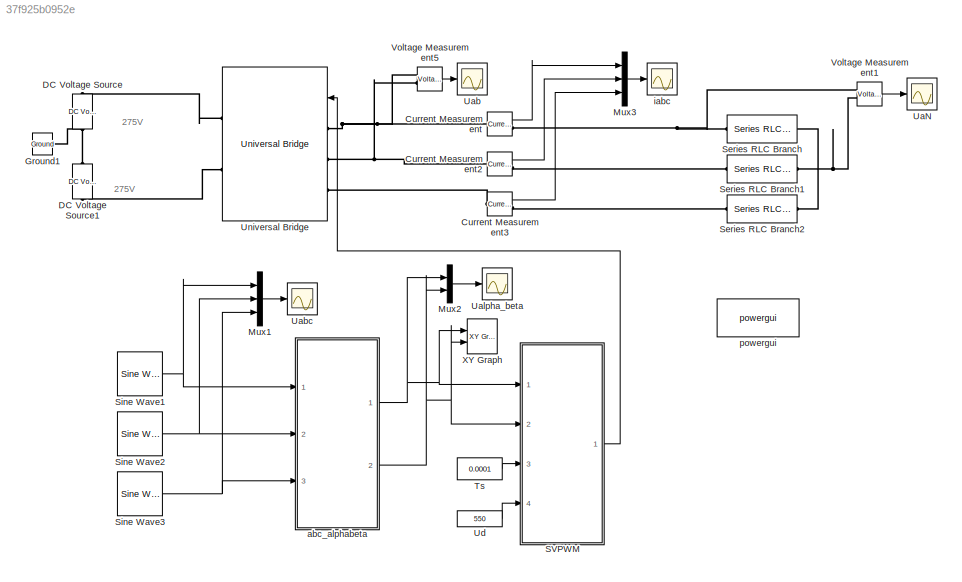
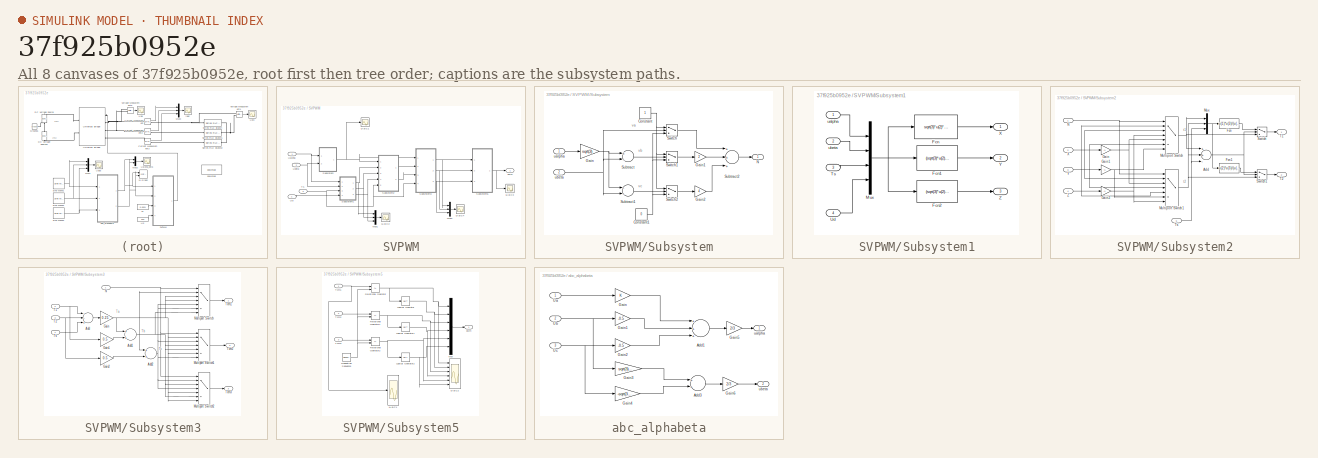
[diagram: thumbnail index - all 8 canvases of the model, root first then tree order]
MODEL slx_37f925b0952e
KIND model
CONFIG AbsTol = auto
CONFIG FixedStep = 2e-6
CONFIG MaxStep = 0.00001
CONFIG MinStep = auto
CONFIG RelTol = 1e-3
CONFIG SampleTimeConstraint = Unconstrained
CONFIG Solver = ode3
CONFIG SolverMode = Auto
CONFIG SolverName = ode3
CONFIG StartTime = 0.0
CONFIG StopTime = 0.06
BLOCK [Reference] Current Measurement  REF=powerlib/Measurements/Current Measurement
  OutputType = Complex
  PSBequivalent = 0
  PhasorSimulation = off
  Ports = [0, 1, 0, 0, 0, 1, 1]
  SourceBlock = powerlib/Measurements/Current Measurement
  SourceType = Current Measurement
BLOCK [Reference] Current Measurement2  REF=powerlib/Measurements/Current Measurement
  OutputType = Complex
  PSBequivalent = 0
  PhasorSimulation = off
  Ports = [0, 1, 0, 0, 0, 1, 1]
  SourceBlock = powerlib/Measurements/Current Measurement
  SourceType = Current Measurement
BLOCK [Reference] Current Measurement3  REF=powerlib/Measurements/Current Measurement
  OutputType = Complex
  PSBequivalent = 0
  PhasorSimulation = off
  Ports = [0, 1, 0, 0, 0, 1, 1]
  SourceBlock = powerlib/Measurements/Current Measurement
  SourceType = Current Measurement
BLOCK [Reference] DC Voltage Source  REF=powerlib/Electrical
Sources/DC Voltage Source
  Amplitude = 275
  Measurements = None
  Ports = [0, 0, 0, 0, 0, 1, 1]
  SourceBlock = powerlib/Electrical\nSources/DC Voltage Source
  SourceType = DC Voltage Source
BLOCK [Reference] DC Voltage Source1  REF=powerlib/Electrical
Sources/DC Voltage Source
  Amplitude = 275
  Measurements = None
  Ports = [0, 0, 0, 0, 0, 1, 1]
  SourceBlock = powerlib/Electrical\nSources/DC Voltage Source
  SourceType = DC Voltage Source
BLOCK [Reference] Ground1  REF=powerlib/Elements/Ground
  LConnTagsString = a
  Ports = [0, 0, 0, 0, 0, 1]
  SourceBlock = powerlib/Elements/Ground
  SourceType = Ground
BLOCK [Mux] Mux1
  DisplayOption = bar
  Inputs = 3
  Ports = [3, 1]
BLOCK [Mux] Mux2
  DisplayOption = bar
  Inputs = 2
  Ports = [2, 1]
BLOCK [Mux] Mux3
  DisplayOption = bar
  Inputs = 3
  Ports = [3, 1]
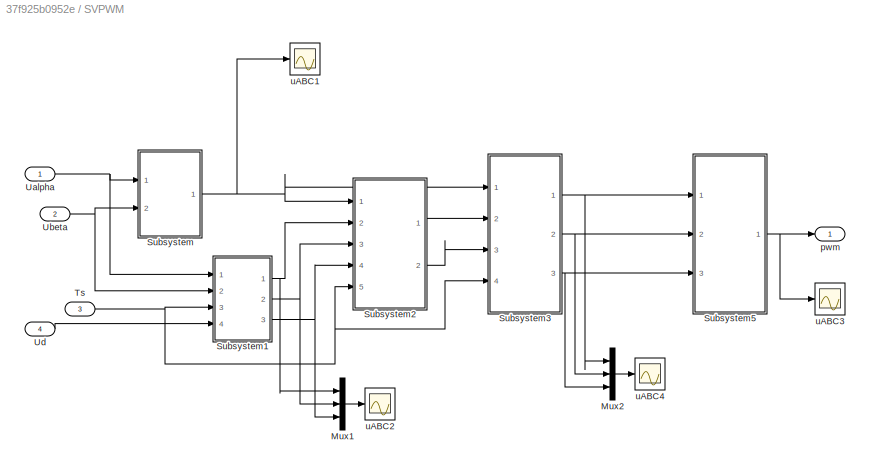
BLOCK [SubSystem] SVPWM
  Ports = [4, 1]
  RequestExecContextInheritance = off
BLOCK [Mux] SVPWM/Mux1
  DisplayOption = bar
  Inputs = 3
  Ports = [3, 1]
BLOCK [Mux] SVPWM/Mux2
  DisplayOption = bar
  Inputs = 3
  Ports = [3, 1]
BLOCK [SubSystem] SVPWM/Subsystem
  Ports = [2, 1]
  RequestExecContextInheritance = off
BLOCK [Constant] SVPWM/Subsystem/Constant
BLOCK [Constant] SVPWM/Subsystem/Constant1
  Value = 0
BLOCK [Gain] SVPWM/Subsystem/Gain
  Gain = sqrt(3)
  OutDataTypeStr = Inherit: Inherit via internal rule
  ParamDataTypeStr = Inherit: Inherit via internal rule
  SaturateOnIntegerOverflow = off
BLOCK [Gain] SVPWM/Subsystem/Gain1
  Gain = 2
  OutDataTypeStr = Inherit: Inherit via internal rule
  ParamDataTypeStr = Inherit: Inherit via internal rule
  SaturateOnIntegerOverflow = off
BLOCK [Gain] SVPWM/Subsystem/Gain2
  Gain = 4
  OutDataTypeStr = Inherit: Inherit via internal rule
  ParamDataTypeStr = Inherit: Inherit via internal rule
  SaturateOnIntegerOverflow = off
BLOCK [Outport] SVPWM/Subsystem/N
  IconDisplay = Port number
BLOCK [Sum] SVPWM/Subsystem/Subtract
  InputSameDT = off
  Inputs = +-
  OutDataTypeStr = Inherit: Inherit via internal rule
  Ports = [2, 1]
  SaturateOnIntegerOverflow = off
BLOCK [Sum] SVPWM/Subsystem/Subtract1
  InputSameDT = off
  Inputs = --
  OutDataTypeStr = Inherit: Inherit via internal rule
  Ports = [2, 1]
  SaturateOnIntegerOverflow = off
BLOCK [Sum] SVPWM/Subsystem/Subtract2
  InputSameDT = off
  Inputs = +++
  OutDataTypeStr = Inherit: Inherit via internal rule
  Ports = [3, 1]
  SaturateOnIntegerOverflow = off
BLOCK [Switch] SVPWM/Subsystem/Switch
  InputSameDT = off
  SaturateOnIntegerOverflow = off
BLOCK [Switch] SVPWM/Subsystem/Switch1
  InputSameDT = off
  SaturateOnIntegerOverflow = off
BLOCK [Switch] SVPWM/Subsystem/Switch2
  InputSameDT = off
  SaturateOnIntegerOverflow = off
BLOCK [Inport] SVPWM/Subsystem/ualpha
  IconDisplay = Port number
BLOCK [Inport] SVPWM/Subsystem/ubeta
  IconDisplay = Port number
  Port = 2
BLOCK [SubSystem] SVPWM/Subsystem1
  Ports = [4, 3]
  RequestExecContextInheritance = off
BLOCK [Fcn] SVPWM/Subsystem1/Fcn
  Expr = sqrt(3)*u(2)*u(3)/u(4)
BLOCK [Fcn] SVPWM/Subsystem1/Fcn1
  Expr = (sqrt(3)*u(2)/2+3*u(1)/2)*u(3)/u(4)
BLOCK [Fcn] SVPWM/Subsystem1/Fcn2
  Expr = (sqrt(3)*u(2)/2-3*u(1)/2)*u(3)/u(4)
BLOCK [Mux] SVPWM/Subsystem1/Mux
  DisplayOption = bar
  Ports = [4, 1]
BLOCK [Inport] SVPWM/Subsystem1/Ts
  IconDisplay = Port number
  Port = 3
BLOCK [Inport] SVPWM/Subsystem1/Ud
  IconDisplay = Port number
  Port = 4
BLOCK [Outport] SVPWM/Subsystem1/X
  IconDisplay = Port number
BLOCK [Outport] SVPWM/Subsystem1/Y
  IconDisplay = Port number
  Port = 2
BLOCK [Outport] SVPWM/Subsystem1/Z
  IconDisplay = Port number
  Port = 3
BLOCK [Inport] SVPWM/Subsystem1/ualpha
  IconDisplay = Port number
BLOCK [Inport] SVPWM/Subsystem1/ubeta
  IconDisplay = Port number
  Port = 2
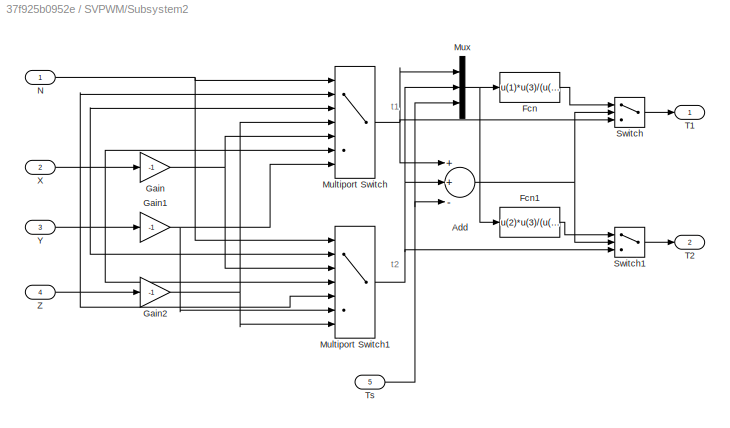
BLOCK [SubSystem] SVPWM/Subsystem2
  Ports = [5, 2]
  RequestExecContextInheritance = off
BLOCK [Sum] SVPWM/Subsystem2/Add
  InputSameDT = off
  Inputs = ++-
  OutDataTypeStr = Inherit: Inherit via internal rule
  Ports = [3, 1]
  SaturateOnIntegerOverflow = off
BLOCK [Fcn] SVPWM/Subsystem2/Fcn
  Expr = u(1)*u(3)/(u(1)+u(2))
BLOCK [Fcn] SVPWM/Subsystem2/Fcn1
  Expr = u(2)*u(3)/(u(1)+u(2))
BLOCK [Gain] SVPWM/Subsystem2/Gain
  Gain = -1
  OutDataTypeStr = Inherit: Inherit via internal rule
  ParamDataTypeStr = Inherit: Inherit via internal rule
  SaturateOnIntegerOverflow = off
BLOCK [Gain] SVPWM/Subsystem2/Gain1
  Gain = -1
  OutDataTypeStr = Inherit: Inherit via internal rule
  ParamDataTypeStr = Inherit: Inherit via internal rule
  SaturateOnIntegerOverflow = off
BLOCK [Gain] SVPWM/Subsystem2/Gain2
  Gain = -1
  OutDataTypeStr = Inherit: Inherit via internal rule
  ParamDataTypeStr = Inherit: Inherit via internal rule
  SaturateOnIntegerOverflow = off
BLOCK [MultiPortSwitch] SVPWM/Subsystem2/Multiport Switch
  InputSameDT = off
  Inputs = 6
  Ports = [7, 1]
  SaturateOnIntegerOverflow = off
BLOCK [MultiPortSwitch] SVPWM/Subsystem2/Multiport Switch1
  InputSameDT = off
  Inputs = 6
  Ports = [7, 1]
  SaturateOnIntegerOverflow = off
BLOCK [Mux] SVPWM/Subsystem2/Mux
  DisplayOption = bar
  Inputs = 3
  Ports = [3, 1]
BLOCK [Inport] SVPWM/Subsystem2/N
  IconDisplay = Port number
BLOCK [Switch] SVPWM/Subsystem2/Switch
  InputSameDT = off
  SaturateOnIntegerOverflow = off
BLOCK [Switch] SVPWM/Subsystem2/Switch1
  InputSameDT = off
  SaturateOnIntegerOverflow = off
BLOCK [Outport] SVPWM/Subsystem2/T1
  IconDisplay = Port number
BLOCK [Outport] SVPWM/Subsystem2/T2
  IconDisplay = Port number
  Port = 2
BLOCK [Inport] SVPWM/Subsystem2/Ts
  IconDisplay = Port number
  Port = 5
BLOCK [Inport] SVPWM/Subsystem2/X
  IconDisplay = Port number
  Port = 2
BLOCK [Inport] SVPWM/Subsystem2/Y
  IconDisplay = Port number
  Port = 3
BLOCK [Inport] SVPWM/Subsystem2/Z
  IconDisplay = Port number
  Port = 4
BLOCK [SubSystem] SVPWM/Subsystem3
  Ports = [4, 3]
  RequestExecContextInheritance = off
BLOCK [Sum] SVPWM/Subsystem3/Add
  InputSameDT = off
  Inputs = --+
  OutDataTypeStr = Inherit: Inherit via internal rule
  Ports = [3, 1]
  SaturateOnIntegerOverflow = off
BLOCK [Sum] SVPWM/Subsystem3/Add1
  InputSameDT = off
  OutDataTypeStr = Inherit: Inherit via internal rule
  Ports = [2, 1]
  SaturateOnIntegerOverflow = off
BLOCK [Sum] SVPWM/Subsystem3/Add2
  InputSameDT = off
  OutDataTypeStr = Inherit: Inherit via internal rule
  Ports = [2, 1]
  SaturateOnIntegerOverflow = off
BLOCK [Gain] SVPWM/Subsystem3/Gain
  Gain = 0.25
  OutDataTypeStr = Inherit: Inherit via internal rule
  ParamDataTypeStr = Inherit: Inherit via internal rule
  SaturateOnIntegerOverflow = off
BLOCK [Gain] SVPWM/Subsystem3/Gain1
  Gain = 0.5
  OutDataTypeStr = Inherit: Inherit via internal rule
  ParamDataTypeStr = Inherit: Inherit via internal rule
  SaturateOnIntegerOverflow = off
BLOCK [Gain] SVPWM/Subsystem3/Gain2
  Gain = 0.5
  OutDataTypeStr = Inherit: Inherit via internal rule
  ParamDataTypeStr = Inherit: Inherit via internal rule
  SaturateOnIntegerOverflow = off
BLOCK [MultiPortSwitch] SVPWM/Subsystem3/Multiport Switch
  InputSameDT = off
  Inputs = 6
  Ports = [7, 1]
  SaturateOnIntegerOverflow = off
BLOCK [MultiPortSwitch] SVPWM/Subsystem3/Multiport Switch1
  InputSameDT = off
  Inputs = 6
  Ports = [7, 1]
  SaturateOnIntegerOverflow = off
BLOCK [MultiPortSwitch] SVPWM/Subsystem3/Multiport Switch2
  InputSameDT = off
  Inputs = 6
  Ports = [7, 1]
  SaturateOnIntegerOverflow = off
BLOCK [Inport] SVPWM/Subsystem3/N
  IconDisplay = Port number
BLOCK [Inport] SVPWM/Subsystem3/T1
  IconDisplay = Port number
  Port = 2
BLOCK [Inport] SVPWM/Subsystem3/T2
  IconDisplay = Port number
  Port = 3
BLOCK [Outport] SVPWM/Subsystem3/Tcm1
  IconDisplay = Port number
BLOCK [Outport] SVPWM/Subsystem3/Tcm2
  IconDisplay = Port number
  Port = 2
BLOCK [Outport] SVPWM/Subsystem3/Tcm3
  IconDisplay = Port number
  Port = 3
BLOCK [Inport] SVPWM/Subsystem3/Ts
  IconDisplay = Port number
  Port = 4
BLOCK [SubSystem] SVPWM/Subsystem5
  Ports = [3, 1]
  RequestExecContextInheritance = off
BLOCK [Logic] SVPWM/Subsystem5/Logical Operator
  AllPortsSameDT = off
  Operator = NOT
  OutDataTypeStr = boolean
  Ports = [1, 1]
BLOCK [Logic] SVPWM/Subsystem5/Logical Operator1
  AllPortsSameDT = off
  Operator = NOT
  OutDataTypeStr = boolean
  Ports = [1, 1]
BLOCK [Logic] SVPWM/Subsystem5/Logical Operator2
  AllPortsSameDT = off
  Operator = NOT
  OutDataTypeStr = boolean
  Ports = [1, 1]
BLOCK [Mux] SVPWM/Subsystem5/Mux
  DisplayOption = bar
  Inputs = 6
  Ports = [6, 1]
BLOCK [RelationalOperator] SVPWM/Subsystem5/Relational Operator
  InputSameDT = off
  Operator = <=
  OutDataTypeStr = boolean
  Ports = [2, 1]
BLOCK [RelationalOperator] SVPWM/Subsystem5/Relational Operator1
  InputSameDT = off
  Operator = <=
  OutDataTypeStr = boolean
  Ports = [2, 1]
BLOCK [RelationalOperator] SVPWM/Subsystem5/Relational Operator2
  InputSameDT = off
  Operator = <=
  OutDataTypeStr = boolean
  Ports = [2, 1]
BLOCK [Reference] SVPWM/Subsystem5/Repeating Sequence  REF=simulink/Sources/Repeating
Sequence
  Ports = [0, 1]
  SourceBlock = simulink/Sources/Repeating\nSequence
  SourceType = Repeating table
  rep_seq_t = [0 5e-5 1e-4]
  rep_seq_y = [0 5e-5 0]
BLOCK [Inport] SVPWM/Subsystem5/Tcm1
  IconDisplay = Port number
BLOCK [Inport] SVPWM/Subsystem5/Tcm2
  IconDisplay = Port number
  Port = 2
BLOCK [Inport] SVPWM/Subsystem5/Tcm3
  IconDisplay = Port number
  Port = 3
BLOCK [Outport] SVPWM/Subsystem5/pwm
  IconDisplay = Port number
BLOCK [Scope] SVPWM/Subsystem5/uABC1
  DataFormat = StructureWithTime
  Floating = off
  LimitDataPoints = off
  NumInputPorts = 1
  Ports = [1]
  SampleTime = 0
  SaveName = ScopeData33
  YMax = 4e-05
  YMin = 1e-05
  ZoomMode = xonly
BLOCK [Scope] SVPWM/Subsystem5/uABC2
  DataFormat = StructureWithTime
  Floating = off
  LimitDataPoints = off
  NumInputPorts = 6
  Ports = [6]
  SampleTime = 0
  SaveName = ScopeData9
  YMax = 750~5~5~5~5~5
  YMin = -750~-5~-5~-5~-5~-5
  ZoomMode = xonly
BLOCK [Inport] SVPWM/Ts
  IconDisplay = Port number
  Port = 3
BLOCK [Inport] SVPWM/Ualpha
  IconDisplay = Port number
BLOCK [Inport] SVPWM/Ubeta
  IconDisplay = Port number
  Port = 2
BLOCK [Inport] SVPWM/Ud
  IconDisplay = Port number
  Port = 4
BLOCK [Outport] SVPWM/pwm
  IconDisplay = Port number
BLOCK [Scope] SVPWM/uABC1
  DataFormat = StructureWithTime
  Floating = off
  LimitDataPoints = off
  NumInputPorts = 1
  Ports = [1]
  SampleTime = 0
  SaveName = ScopeData2
  YMax = 750
  YMin = -750
  ZoomMode = xonly
BLOCK [Scope] SVPWM/uABC2
  DataFormat = StructureWithTime
  Floating = off
  LimitDataPoints = off
  NumInputPorts = 1
  Ports = [1]
  SampleTime = 0
  SaveName = ScopeData3
  YMax = 750
  YMin = -750
  ZoomMode = xonly
BLOCK [Scope] SVPWM/uABC3
  DataFormat = StructureWithTime
  Floating = off
  LimitDataPoints = off
  NumInputPorts = 1
  Ports = [1]
  SampleTime = 0
  SaveName = ScopeData10
  YMax = 1
  YMin = 0
  ZoomMode = xonly
BLOCK [Scope] SVPWM/uABC4
  DataFormat = StructureWithTime
  Floating = off
  LimitDataPoints = off
  NumInputPorts = 1
  Ports = [1]
  SampleTime = 0
  YMax = 5.25e-005
  YMin = -2.5e-006
  ZoomMode = xonly
BLOCK [Reference] Series RLC Branch  REF=powerlib/Elements/Series RLC Branch
  BranchType = RL
  Capacitance = 1e-6
  Inductance = 1e-3
  InitialCurrent = 0
  InitialVoltage = 0
  LConnTagsString = __new0
  Measurements = None
  Ports = [0, 0, 0, 0, 0, 1, 1]
  RConnTagsString = __new0
  Resistance = 1
  SetiL0 = off
  Setx0 = off
  SourceBlock = powerlib/Elements/Series RLC Branch
  SourceType = Series RLC Branch
BLOCK [Reference] Series RLC Branch1  REF=powerlib/Elements/Series RLC Branch
  BranchType = RL
  Capacitance = 1e-6
  Inductance = 1e-3
  InitialCurrent = 0
  InitialVoltage = 0
  LConnTagsString = __new0
  Measurements = None
  Ports = [0, 0, 0, 0, 0, 1, 1]
  RConnTagsString = __new0
  Resistance = 1
  SetiL0 = off
  Setx0 = off
  SourceBlock = powerlib/Elements/Series RLC Branch
  SourceType = Series RLC Branch
BLOCK [Reference] Series RLC Branch2  REF=powerlib/Elements/Series RLC Branch
  BranchType = RL
  Capacitance = 1e-6
  Inductance = 1e-3
  InitialCurrent = 0
  InitialVoltage = 0
  LConnTagsString = __new0
  Measurements = None
  Ports = [0, 0, 0, 0, 0, 1, 1]
  RConnTagsString = __new0
  Resistance = 1
  SetiL0 = off
  Setx0 = off
  SourceBlock = powerlib/Elements/Series RLC Branch
  SourceType = Series RLC Branch
BLOCK [Reference] Sine Wave1  REF=dspsrcs4/Sine Wave
  Amplitude = 311
  CompMethod = Trigonometric fcn
  Frequency = 50
  LastOutDataTypeStr = double
  OutComplex = Real
  OutDataTypeStr = double
  Phase = 0
  Ports = [0, 1]
  ResetState = Restart at time zero
  SampleMode = Discrete
  SampleTime = 2e-6
  SamplesPerFrame = 1
  SourceBlock = dspsrcs4/Sine Wave
  SourceType = Sine Wave
  TableSize = Speed
  additionalParams = off
  allowOverrides = on
  dataType = double
  fracBitsMode = Best precision
  numFracBits = 15
  udDataType = sfix(16)
  wordLen = 16
BLOCK [Reference] Sine Wave2  REF=dspsrcs4/Sine Wave
  Amplitude = 311
  CompMethod = Trigonometric fcn
  Frequency = 50
  LastOutDataTypeStr = double
  OutComplex = Real
  OutDataTypeStr = double
  Phase = -2*pi/3
  Ports = [0, 1]
  ResetState = Restart at time zero
  SampleMode = Discrete
  SampleTime = 2e-6
  SamplesPerFrame = 1
  SourceBlock = dspsrcs4/Sine Wave
  SourceType = Sine Wave
  TableSize = Speed
  additionalParams = off
  allowOverrides = on
  dataType = double
  fracBitsMode = Best precision
  numFracBits = 15
  udDataType = sfix(16)
  wordLen = 16
BLOCK [Reference] Sine Wave3  REF=dspsrcs4/Sine Wave
  Amplitude = 311
  CompMethod = Trigonometric fcn
  Frequency = 50
  LastOutDataTypeStr = double
  OutComplex = Real
  OutDataTypeStr = double
  Phase = -4*pi/3
  Ports = [0, 1]
  ResetState = Restart at time zero
  SampleMode = Discrete
  SampleTime = 2e-6
  SamplesPerFrame = 1
  SourceBlock = dspsrcs4/Sine Wave
  SourceType = Sine Wave
  TableSize = Speed
  additionalParams = off
  allowOverrides = on
  dataType = double
  fracBitsMode = Best precision
  numFracBits = 15
  udDataType = sfix(16)
  wordLen = 16
BLOCK [Constant] Ts
  Value = 0.0001
BLOCK [Scope] UaN
  DataFormat = StructureWithTime
  Floating = off
  LimitDataPoints = off
  NumInputPorts = 1
  Ports = [1]
  SampleTime = 0
  SaveName = ScopeData6
  ZoomMode = xonly
BLOCK [Scope] Uab
  DataFormat = StructureWithTime
  Floating = off
  LimitDataPoints = off
  NumInputPorts = 1
  Ports = [1]
  SampleTime = 0
  SaveName = ScopeData1
  YMax = 600
  YMin = -600
  ZoomMode = xonly
BLOCK [Scope] Uabc
  DataFormat = StructureWithTime
  Floating = off
  LimitDataPoints = off
  NumInputPorts = 1
  Ports = [1]
  SampleTime = 0
  SaveName = ScopeData7
  YMax = 35
  YMin = -35
  ZoomMode = xonly
BLOCK [Scope] Ualpha_beta
  DataFormat = StructureWithTime
  Floating = off
  LimitDataPoints = off
  NumInputPorts = 1
  Ports = [1]
  SampleTime = 0
  SaveName = ScopeData4
  YMax = 1.1e+006
  YMin = -1.1e+006
  ZoomMode = yonly
BLOCK [Constant] Ud
  Value = 550
BLOCK [Reference] Universal Bridge  REF=powerlib/Power
Electronics/Universal Bridge
  Arms = 3
  Device = MOSFET / Diodes
  ForwardVoltage = 0
  ForwardVoltages = [  0  0  ]
  GTOparameters = [ 10e-6 , 20e-6 ]
  IGBTparameters = [ 1e-6 , 2e-6 ]
  Lon = 0
  Measurements = None
  Measurements_2 = None
  Ports = [1, 0, 0, 0, 0, 3, 2]
  Ron = 1e-3
  SnubberCapacitance = inf
  SnubberResistance = 1e5
  SourceBlock = powerlib/Power\nElectronics/Universal Bridge
  SourceType = Universal Bridge
  converterType = Rectifier
BLOCK [Reference] Voltage Measurement1  REF=powerlib/Measurements/Voltage Measurement
  OutputType = Complex
  PSBequivalent = 0
  PhasorSimulation = off
  Ports = [0, 1, 0, 0, 0, 2]
  SourceBlock = powerlib/Measurements/Voltage Measurement
  SourceType = Voltage Measurement
BLOCK [Reference] Voltage Measurement5  REF=powerlib/Measurements/Voltage Measurement
  OutputType = Complex
  PSBequivalent = 0
  PhasorSimulation = off
  Ports = [0, 1, 0, 0, 0, 2]
  SourceBlock = powerlib/Measurements/Voltage Measurement
  SourceType = Voltage Measurement
BLOCK [Reference] XY Graph  REF=simulink/Sinks/XY Graph
  Ports = [2]
  SourceBlock = simulink/Sinks/XY Graph
  SourceType = XY scope.
  st = -1
  xmax = 550
  xmin = -550
  ymax = 550
  ymin = -550
BLOCK [SubSystem] abc_alphabeta
  Ports = [3, 2]
  RequestExecContextInheritance = off
BLOCK [Sum] abc_alphabeta/Add1
  InputSameDT = off
  Inputs = +++
  OutDataTypeStr = Inherit: Inherit via internal rule
  Ports = [3, 1]
  SaturateOnIntegerOverflow = off
BLOCK [Sum] abc_alphabeta/Add3
  InputSameDT = off
  OutDataTypeStr = Inherit: Inherit via internal rule
  Ports = [2, 1]
  SaturateOnIntegerOverflow = off
BLOCK [Gain] abc_alphabeta/Gain
  OutDataTypeStr = Inherit: Inherit via internal rule
  ParamDataTypeStr = Inherit: Inherit via internal rule
  SaturateOnIntegerOverflow = off
BLOCK [Gain] abc_alphabeta/Gain1
  Gain = -0.5
  OutDataTypeStr = Inherit: Inherit via internal rule
  ParamDataTypeStr = Inherit: Inherit via internal rule
  SaturateOnIntegerOverflow = off
BLOCK [Gain] abc_alphabeta/Gain2
  Gain = -0.5
  OutDataTypeStr = Inherit: Inherit via internal rule
  ParamDataTypeStr = Inherit: Inherit via internal rule
  SaturateOnIntegerOverflow = off
BLOCK [Gain] abc_alphabeta/Gain3
  Gain = sqrt(3)/2
  OutDataTypeStr = Inherit: Inherit via internal rule
  ParamDataTypeStr = Inherit: Inherit via internal rule
  SaturateOnIntegerOverflow = off
BLOCK [Gain] abc_alphabeta/Gain4
  Gain = -sqrt(3)/2
  OutDataTypeStr = Inherit: Inherit via internal rule
  ParamDataTypeStr = Inherit: Inherit via internal rule
  SaturateOnIntegerOverflow = off
BLOCK [Gain] abc_alphabeta/Gain5
  Gain = 2/3
  OutDataTypeStr = Inherit: Inherit via internal rule
  ParamDataTypeStr = Inherit: Inherit via internal rule
  SaturateOnIntegerOverflow = off
BLOCK [Gain] abc_alphabeta/Gain6
  Gain = 2/3
  OutDataTypeStr = Inherit: Inherit via internal rule
  ParamDataTypeStr = Inherit: Inherit via internal rule
  SaturateOnIntegerOverflow = off
BLOCK [Inport] abc_alphabeta/Ua
  IconDisplay = Port number
BLOCK [Inport] abc_alphabeta/Ub
  IconDisplay = Port number
  Port = 2
BLOCK [Inport] abc_alphabeta/Uc
  IconDisplay = Port number
  Port = 3
BLOCK [Outport] abc_alphabeta/ualpha
  IconDisplay = Port number
BLOCK [Outport] abc_alphabeta/ubeta
  IconDisplay = Port number
  Port = 2
BLOCK [Scope] iabc
  DataFormat = StructureWithTime
  Floating = off
  LimitDataPoints = off
  NumInputPorts = 1
  Ports = [1]
  SampleTime = 0
  SaveName = ScopeData5
  YMax = 300
  YMin = -300
  ZoomMode = xonly
BLOCK [Reference] powergui  REF=powerlib/powergui
  DisableRonSwitches = off
  DisableSnubberDevices = off
  DisableVfSwitches = off
  DisplayEquations = off
  DisplayStyle = 1
  EnableUseOfTLC = off
  ErrMax = 1e-4
  Frange = [0:2:500]
  FreqAxis = off
  FunctionMessages = off
  HookPort = off
  Interpol = off
  Iterations = 50
  MaxFrequency = 1000
  Pbase = 100e6
  Ports = []
  Priority = 1
  ResistiveCurrentMeasurement = off
  RestoreLinks = warning
  RmsSteady = 1
  SPID = off
  SampleTime = 2e-6
  ShowGrid = off
  SolverType = Tustin
  SourceBlock = powerlib/powergui
  SourceType = PSB option menu block
  StartTime = 0.0
  SwTol = 0
  Ts = 0
  UnitsV = kV
  UnitsW = MW
  UserDataPersistent = on
  Xlog = on
  Ylog = off
  ZoomFFT = off
  buscounter = 0
  cycles = 1
  display = off
  echomessages = off
  frequency = 60
  frequencyindice = 0
  frequencyindicesteady = 1
  fundamental = 60
  methode = off
  save = off
  structure = 0
  variable = ZData
  x0status = blocks
ANNOTATION (root): 275V
ANNOTATION SVPWM/Subsystem: va
ANNOTATION SVPWM/Subsystem: vb
ANNOTATION SVPWM/Subsystem: vc
ANNOTATION SVPWM/Subsystem2: t1
ANNOTATION SVPWM/Subsystem2: t2
ANNOTATION SVPWM/Subsystem3: Ta
ANNOTATION SVPWM/Subsystem3: Tb
ANNOTATION SVPWM/Subsystem3: Tc
LINE Current Measurement2:1 -> Mux3:2
LINE Current Measurement3:1 -> Mux3:3
LINE Current Measurement:1 -> Mux3:1
LINE Mux1:1 -> Uabc:1
LINE Mux2:1 -> Ualpha_beta:1
LINE Mux3:1 -> iabc:1
LINE SVPWM/Mux1:1 -> SVPWM/uABC2:1
LINE SVPWM/Mux2:1 -> SVPWM/uABC4:1
NET SVPWM/Subsystem/Constant1:1 -> SVPWM/Subsystem/Switch1:3, SVPWM/Subsystem/Switch2:3, SVPWM/Subsystem/Switch:3
NET SVPWM/Subsystem/Constant:1 -> SVPWM/Subsystem/Switch1:1, SVPWM/Subsystem/Switch2:1, SVPWM/Subsystem/Switch:1
LINE SVPWM/Subsystem/Gain1:1 -> SVPWM/Subsystem/Subtract2:2
LINE SVPWM/Subsystem/Gain2:1 -> SVPWM/Subsystem/Subtract2:3
NET SVPWM/Subsystem/Gain:1 -> SVPWM/Subsystem/Subtract1:1, SVPWM/Subsystem/Subtract:1
LINE SVPWM/Subsystem/Subtract1:1 -> SVPWM/Subsystem/Switch2:2
LINE SVPWM/Subsystem/Subtract2:1 -> SVPWM/Subsystem/N:1
LINE SVPWM/Subsystem/Subtract:1 -> SVPWM/Subsystem/Switch1:2
LINE SVPWM/Subsystem/Switch1:1 -> SVPWM/Subsystem/Gain1:1
LINE SVPWM/Subsystem/Switch2:1 -> SVPWM/Subsystem/Gain2:1
LINE SVPWM/Subsystem/Switch:1 -> SVPWM/Subsystem/Subtract2:1
LINE SVPWM/Subsystem/ualpha:1 -> SVPWM/Subsystem/Gain:1
NET SVPWM/Subsystem/ubeta:1 -> SVPWM/Subsystem/Subtract1:2, SVPWM/Subsystem/Subtract:2, SVPWM/Subsystem/Switch:2
LINE SVPWM/Subsystem1/Fcn1:1 -> SVPWM/Subsystem1/Y:1
LINE SVPWM/Subsystem1/Fcn2:1 -> SVPWM/Subsystem1/Z:1
LINE SVPWM/Subsystem1/Fcn:1 -> SVPWM/Subsystem1/X:1
NET SVPWM/Subsystem1/Mux:1 -> SVPWM/Subsystem1/Fcn1:1, SVPWM/Subsystem1/Fcn2:1, SVPWM/Subsystem1/Fcn:1
LINE SVPWM/Subsystem1/Ts:1 -> SVPWM/Subsystem1/Mux:3
LINE SVPWM/Subsystem1/Ud:1 -> SVPWM/Subsystem1/Mux:4
LINE SVPWM/Subsystem1/ualpha:1 -> SVPWM/Subsystem1/Mux:1
LINE SVPWM/Subsystem1/ubeta:1 -> SVPWM/Subsystem1/Mux:2
NET SVPWM/Subsystem1:1 -> SVPWM/Mux1:1, SVPWM/Subsystem2:2
NET SVPWM/Subsystem1:2 -> SVPWM/Mux1:2, SVPWM/Subsystem2:3
NET SVPWM/Subsystem1:3 -> SVPWM/Mux1:3, SVPWM/Subsystem2:4
NET SVPWM/Subsystem2/Add:1 -> SVPWM/Subsystem2/Switch1:2, SVPWM/Subsystem2/Switch:2
LINE SVPWM/Subsystem2/Fcn1:1 -> SVPWM/Subsystem2/Switch1:1
LINE SVPWM/Subsystem2/Fcn:1 -> SVPWM/Subsystem2/Switch:1
NET SVPWM/Subsystem2/Gain1:1 -> SVPWM/Subsystem2/Multiport Switch1:6, SVPWM/Subsystem2/Multiport Switch:7
NET SVPWM/Subsystem2/Gain2:1 -> SVPWM/Subsystem2/Multiport Switch1:7, SVPWM/Subsystem2/Multiport Switch:4
NET SVPWM/Subsystem2/Gain:1 -> SVPWM/Subsystem2/Multiport Switch1:3, SVPWM/Subsystem2/Multiport Switch:5
NET SVPWM/Subsystem2/Multiport Switch1:1 -> SVPWM/Subsystem2/Add:2, SVPWM/Subsystem2/Mux:2, SVPWM/Subsystem2/Switch1:3
NET SVPWM/Subsystem2/Multiport Switch:1 -> SVPWM/Subsystem2/Add:1, SVPWM/Subsystem2/Mux:1, SVPWM/Subsystem2/Switch:3
NET SVPWM/Subsystem2/Mux:1 -> SVPWM/Subsystem2/Fcn1:1, SVPWM/Subsystem2/Fcn:1
NET SVPWM/Subsystem2/N:1 -> SVPWM/Subsystem2/Multiport Switch1:1, SVPWM/Subsystem2/Multiport Switch:1
LINE SVPWM/Subsystem2/Switch1:1 -> SVPWM/Subsystem2/T2:1
LINE SVPWM/Subsystem2/Switch:1 -> SVPWM/Subsystem2/T1:1
NET SVPWM/Subsystem2/Ts:1 -> SVPWM/Subsystem2/Add:3, SVPWM/Subsystem2/Mux:3
NET SVPWM/Subsystem2/X:1 -> SVPWM/Subsystem2/Gain:1, SVPWM/Subsystem2/Multiport Switch1:4, SVPWM/Subsystem2/Multiport Switch:6
NET SVPWM/Subsystem2/Y:1 -> SVPWM/Subsystem2/Gain1:1, SVPWM/Subsystem2/Multiport Switch1:2, SVPWM/Subsystem2/Multiport Switch:3
NET SVPWM/Subsystem2/Z:1 -> SVPWM/Subsystem2/Gain2:1, SVPWM/Subsystem2/Multiport Switch1:5, SVPWM/Subsystem2/Multiport Switch:2
LINE SVPWM/Subsystem2:1 -> SVPWM/Subsystem3:2
LINE SVPWM/Subsystem2:2 -> SVPWM/Subsystem3:3
NET SVPWM/Subsystem3/Add1:1 -> SVPWM/Subsystem3/Add2:1, SVPWM/Subsystem3/Multiport Switch1:4, SVPWM/Subsystem3/Multiport Switch1:5, SVPWM/Subsystem3/Multiport Switch2:3, SVPWM/Subsystem3/Multiport Switch2:6, SVPWM/Subsystem3/Multiport Switch:2, SVPWM/Subsystem3/Multiport Switch:7
NET SVPWM/Subsystem3/Add2:1 -> SVPWM/Subsystem3/Multiport Switch1:3, SVPWM/Subsystem3/Multiport Switch1:7, SVPWM/Subsystem3/Multiport Switch2:2, SVPWM/Subsystem3/Multiport Switch2:4, SVPWM/Subsystem3/Multiport Switch:5, SVPWM/Subsystem3/Multiport Switch:6
LINE SVPWM/Subsystem3/Add:1 -> SVPWM/Subsystem3/Gain:1
LINE SVPWM/Subsystem3/Gain1:1 -> SVPWM/Subsystem3/Add1:2
LINE SVPWM/Subsystem3/Gain2:1 -> SVPWM/Subsystem3/Add2:2
NET SVPWM/Subsystem3/Gain:1 -> SVPWM/Subsystem3/Add1:1, SVPWM/Subsystem3/Multiport Switch1:2, SVPWM/Subsystem3/Multiport Switch1:6, SVPWM/Subsystem3/Multiport Switch2:5, SVPWM/Subsystem3/Multiport Switch2:7, SVPWM/Subsystem3/Multiport Switch:3, SVPWM/Subsystem3/Multiport Switch:4
LINE SVPWM/Subsystem3/Multiport Switch1:1 -> SVPWM/Subsystem3/Tcm2:1
LINE SVPWM/Subsystem3/Multiport Switch2:1 -> SVPWM/Subsystem3/Tcm3:1
LINE SVPWM/Subsystem3/Multiport Switch:1 -> SVPWM/Subsystem3/Tcm1:1
NET SVPWM/Subsystem3/N:1 -> SVPWM/Subsystem3/Multiport Switch1:1, SVPWM/Subsystem3/Multiport Switch2:1, SVPWM/Subsystem3/Multiport Switch:1
NET SVPWM/Subsystem3/T1:1 -> SVPWM/Subsystem3/Add:1, SVPWM/Subsystem3/Gain1:1
NET SVPWM/Subsystem3/T2:1 -> SVPWM/Subsystem3/Add:2, SVPWM/Subsystem3/Gain2:1
LINE SVPWM/Subsystem3/Ts:1 -> SVPWM/Subsystem3/Add:3
NET SVPWM/Subsystem3:1 -> SVPWM/Mux2:1, SVPWM/Subsystem5:1
NET SVPWM/Subsystem3:2 -> SVPWM/Mux2:2, SVPWM/Subsystem5:2
NET SVPWM/Subsystem3:3 -> SVPWM/Mux2:3, SVPWM/Subsystem5:3
NET SVPWM/Subsystem5/Logical Operator1:1 -> SVPWM/Subsystem5/Mux:4, SVPWM/Subsystem5/uABC2:4
NET SVPWM/Subsystem5/Logical Operator2:1 -> SVPWM/Subsystem5/Mux:6, SVPWM/Subsystem5/uABC2:6
NET SVPWM/Subsystem5/Logical Operator:1 -> SVPWM/Subsystem5/Mux:2, SVPWM/Subsystem5/uABC2:2
LINE SVPWM/Subsystem5/Mux:1 -> SVPWM/Subsystem5/pwm:1
NET SVPWM/Subsystem5/Relational Operator1:1 -> SVPWM/Subsystem5/Logical Operator1:1, SVPWM/Subsystem5/Mux:3, SVPWM/Subsystem5/uABC2:3
NET SVPWM/Subsystem5/Relational Operator2:1 -> SVPWM/Subsystem5/Logical Operator2:1, SVPWM/Subsystem5/Mux:5, SVPWM/Subsystem5/uABC2:5
NET SVPWM/Subsystem5/Relational Operator:1 -> SVPWM/Subsystem5/Logical Operator:1, SVPWM/Subsystem5/Mux:1, SVPWM/Subsystem5/uABC2:1
NET SVPWM/Subsystem5/Repeating Sequence:1 -> SVPWM/Subsystem5/Relational Operator1:2, SVPWM/Subsystem5/Relational Operator2:2, SVPWM/Subsystem5/Relational Operator:2
NET SVPWM/Subsystem5/Tcm1:1 -> SVPWM/Subsystem5/Relational Operator:1, SVPWM/Subsystem5/uABC1:1
LINE SVPWM/Subsystem5/Tcm2:1 -> SVPWM/Subsystem5/Relational Operator1:1
LINE SVPWM/Subsystem5/Tcm3:1 -> SVPWM/Subsystem5/Relational Operator2:1
NET SVPWM/Subsystem5:1 -> SVPWM/pwm:1, SVPWM/uABC3:1
NET SVPWM/Subsystem:1 -> SVPWM/Subsystem2:1, SVPWM/Subsystem3:1, SVPWM/uABC1:1
NET SVPWM/Ts:1 -> SVPWM/Subsystem1:3, SVPWM/Subsystem2:5, SVPWM/Subsystem3:4
NET SVPWM/Ualpha:1 -> SVPWM/Subsystem1:1, SVPWM/Subsystem:1
NET SVPWM/Ubeta:1 -> SVPWM/Subsystem1:2, SVPWM/Subsystem:2
LINE SVPWM/Ud:1 -> SVPWM/Subsystem1:4
LINE SVPWM:1 -> Universal Bridge:1
NET Sine Wave1:1 -> Mux1:1, abc_alphabeta:1
NET Sine Wave2:1 -> Mux1:2, abc_alphabeta:2
NET Sine Wave3:1 -> Mux1:3, abc_alphabeta:3
LINE Ts:1 -> SVPWM:3
LINE Ud:1 -> SVPWM:4
LINE Voltage Measurement1:1 -> UaN:1
LINE Voltage Measurement5:1 -> Uab:1
LINE abc_alphabeta/Add1:1 -> abc_alphabeta/Gain5:1
LINE abc_alphabeta/Add3:1 -> abc_alphabeta/Gain6:1
LINE abc_alphabeta/Gain1:1 -> abc_alphabeta/Add1:2
LINE abc_alphabeta/Gain2:1 -> abc_alphabeta/Add1:3
LINE abc_alphabeta/Gain3:1 -> abc_alphabeta/Add3:1
LINE abc_alphabeta/Gain4:1 -> abc_alphabeta/Add3:2
LINE abc_alphabeta/Gain5:1 -> abc_alphabeta/ualpha:1
LINE abc_alphabeta/Gain6:1 -> abc_alphabeta/ubeta:1
LINE abc_alphabeta/Gain:1 -> abc_alphabeta/Add1:1
LINE abc_alphabeta/Ua:1 -> abc_alphabeta/Gain:1
NET abc_alphabeta/Ub:1 -> abc_alphabeta/Gain1:1, abc_alphabeta/Gain3:1
NET abc_alphabeta/Uc:1 -> abc_alphabeta/Gain2:1, abc_alphabeta/Gain4:1
NET abc_alphabeta:1 -> Mux2:1, SVPWM:1, XY Graph:1
NET abc_alphabeta:2 -> Mux2:2, SVPWM:2, XY Graph:2
PNET net1: Current Measurement2:LConn1 -- Universal Bridge:LConn2 -- Voltage Measurement5:LConn2
PLINE Current Measurement2:RConn1 -- Series RLC Branch1:LConn1
PLINE Current Measurement3:LConn1 -- Universal Bridge:LConn3
PLINE Current Measurement3:RConn1 -- Series RLC Branch2:LConn1
PNET net2: Current Measurement:LConn1 -- Universal Bridge:LConn1 -- Voltage Measurement5:LConn1
PNET net3: Current Measurement:RConn1 -- Series RLC Branch:LConn1 -- Voltage Measurement1:LConn1
PLINE DC Voltage Source1:LConn1 -- Universal Bridge:RConn2
PNET net4: DC Voltage Source1:RConn1 -- DC Voltage Source:LConn1 -- Ground1:LConn1
PLINE DC Voltage Source:RConn1 -- Universal Bridge:RConn1
PNET net5: Series RLC Branch1:RConn1 -- Series RLC Branch2:RConn1 -- Series RLC Branch:RConn1 -- Voltage Measurement1:LConn2
note: NET lines group one-source signal fan-out (src -> all destinations, sorted); 1:1 wires keep LINE; PNET lines group multi-terminal physical nets as a canonical sorted terminal list (undirected conserving connections); 2-terminal nets keep the pairwise PLINE form
